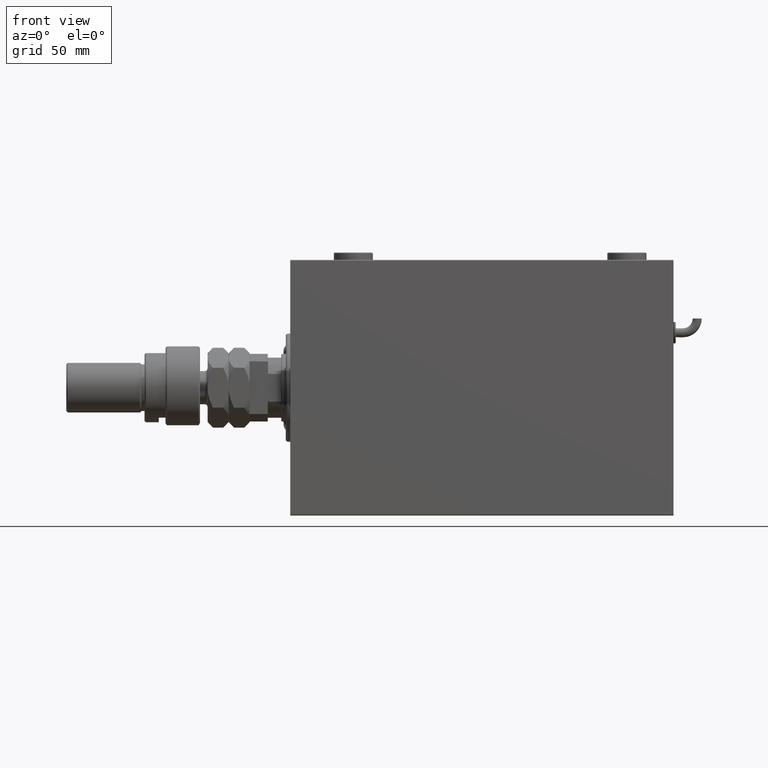
[diagram: clean part render]
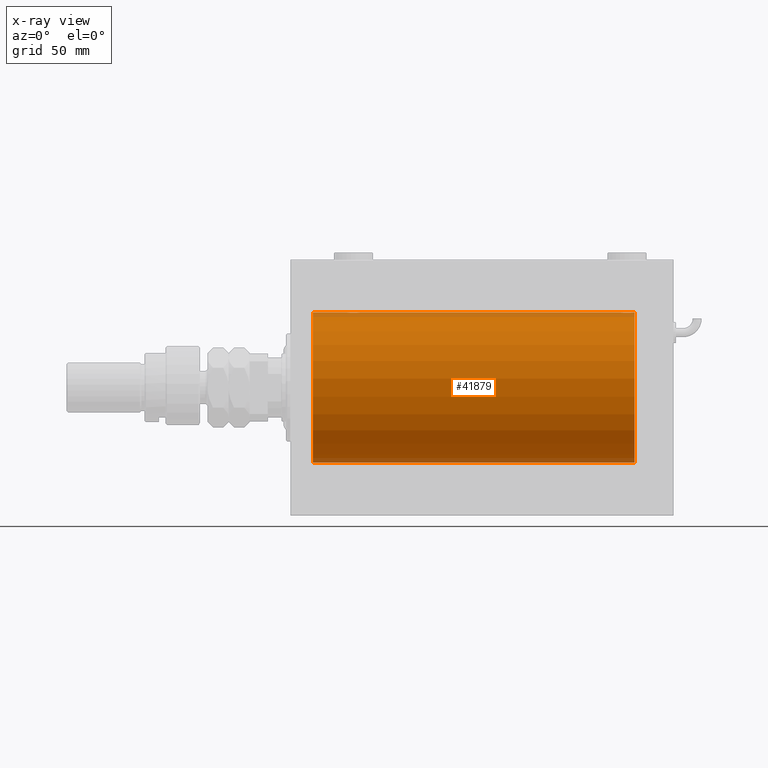
[diagram: x-ray — body ghosted, one internal face saturated and labeled with its STEP entity id]
A machine part, front view, then the same camera in x-ray: the body is ghosted and one INTERNAL B-rep face — a face not visible from any outside direction — is saturated and labeled: STEP entity #41879.
In plain terms, the highlighted cylindrical surface (partial cylindrical patch) has radius 50 mm, axis along (-1, -0, -0).
Its self-contained STEP definition (entity closure, byte-faithful):
#765 = CARTESIAN_POINT ( 'NONE',  ( 45.37519984081966840, -2.597781786597467057, 49.93300953359123184 ) ) ;
#1015 = CARTESIAN_POINT ( 'NONE',  ( 220.3106284432061841, -2.128188802142365166, 49.95522967821975158 ) ) ;
#1017 = EDGE_CURVE ( 'NONE', #43362, #8472, #20101, .T. ) ;
#1185 = VERTEX_POINT ( 'NONE', #12637 ) ;
#1473 = DIRECTION ( 'NONE',  ( -1.000000000000000000, -0.000000000000000000, -0.000000000000000000 ) ) ;
#1858 = ORIENTED_EDGE ( 'NONE', *, *, #54928, .T. ) ;
#2187 = AXIS2_PLACEMENT_3D ( 'NONE', #18991, #54447, #28736 ) ;
#2468 = CARTESIAN_POINT ( 'NONE',  ( 41.44591435119853173, -4.222816005855205113, -49.82138837911246299 ) ) ;
#2497 = CARTESIAN_POINT ( 'NONE',  ( 225.8874473939280563, -3.818052230167736205, -49.85412671291930309 ) ) ;
#2556 = VERTEX_POINT ( 'NONE', #62311 ) ;
#2667 = EDGE_CURVE ( 'NONE', #62833, #6175, #20851, .T. ) ;
#2826 = CARTESIAN_POINT ( 'NONE',  ( 221.8736835512492576, -3.690299572754756952, -49.86386974736159061 ) ) ;
#2952 = CARTESIAN_POINT ( 'NONE',  ( 228.2500000000000568, -0.2808785465865649145, 50.00000000000001421 ) ) ;
#3145 = CARTESIAN_POINT ( 'NONE',  ( 227.6893715567939580, -2.128188802142370495, -49.95522967821975158 ) ) ;
#3440 = CARTESIAN_POINT ( 'NONE',  ( 38.62480015918033871, -2.597781786597466613, -49.93300953359121763 ) ) ;
#3582 = CARTESIAN_POINT ( 'NONE',  ( 229.0000000000000000, 0.000000000000000000, 0.000000000000000000 ) ) ;
#3817 = CARTESIAN_POINT ( 'NONE',  ( 14.99999999999998579, 6.123233995736764507E-15, -50.00000000000000000 ) ) ;
#4599 = AXIS2_PLACEMENT_3D ( 'NONE', #3582, #53350, #42621 ) ;
#5338 = CARTESIAN_POINT ( 'NONE',  ( 41.44002132304352415, -4.222042462213131842, 49.82145436824653473 ) ) ;
#5434 = CARTESIAN_POINT ( 'NONE',  ( 44.81153066515419425, -3.199146701881665500, -49.89793607725460589 ) ) ;
#5577 = CARTESIAN_POINT ( 'NONE',  ( 229.0000000000000000, 6.123233995736764507E-15, -50.00000000000000000 ) ) ;
#5833 = CARTESIAN_POINT ( 'NONE',  ( 228.2500000000000284, 3.884128014896634599E-15, 50.00000000000000000 ) ) ;
#5963 = CARTESIAN_POINT ( 'NONE',  ( 37.88568086693990722, -1.101350136471746843, 49.98862054280448319 ) ) ;
#6069 = CARTESIAN_POINT ( 'NONE',  ( 45.68937155679385143, -2.128188802142360281, -49.95522967821973737 ) ) ;
#6175 = VERTEX_POINT ( 'NONE', #21702 ) ;
#6216 = CARTESIAN_POINT ( 'NONE',  ( 219.7768924720100472, -0.5531336717329080610, 49.99769193709643389 ) ) ;
#6280 = CARTESIAN_POINT ( 'NONE',  ( 37.75000000000000711, -0.2773743941468536089, 50.00000000000000000 ) ) ;
#7008 = LINE ( 'NONE', #41490, #21718 ) ;
#7345 = CARTESIAN_POINT ( 'NONE',  ( 38.18160751012128884, -1.886522330773421574, -49.96505190380066352 ) ) ;
#7379 = CARTESIAN_POINT ( 'NONE',  ( 222.6328935244542890, -4.033756670430873825, -49.83713703490974467 ) ) ;
#7547 = ORIENTED_EDGE ( 'NONE', *, *, #1017, .T. ) ;
#7661 = CARTESIAN_POINT ( 'NONE',  ( 41.72275072962081310, -4.250219976861640880, -49.81902879621016211 ) ) ;
#7694 = CARTESIAN_POINT ( 'NONE',  ( 220.6248001591803813, -2.597781786597489706, -49.93300953359122474 ) ) ;
#8338 = CARTESIAN_POINT ( 'NONE',  ( 226.1313639944615659, -3.687400765141549019, -49.86408552998298660 ) ) ;
#8470 = CARTESIAN_POINT ( 'NONE',  ( 227.3751998408197039, -2.597781786597475495, 49.93300953359122474 ) ) ;
#8472 = VERTEX_POINT ( 'NONE', #14971 ) ;
#8853 = ORIENTED_EDGE ( 'NONE', *, *, #36195, .T. ) ;
#9360 = LINE ( 'NONE', #24016, #52606 ) ;
#9886 = CARTESIAN_POINT ( 'NONE',  ( 38.31062844320614857, -2.128188802142370495, 49.95522967821975868 ) ) ;
#10369 = VERTEX_POINT ( 'NONE', #5833 ) ;
#10769 = CARTESIAN_POINT ( 'NONE',  ( 221.8686360055384910, -3.687400765141541026, 49.86408552998298660 ) ) ;
#10830 = CARTESIAN_POINT ( 'NONE',  ( 44.58820214676201488, -3.382416624899783120, 49.88570010427955737 ) ) ;
#11546 = ORIENTED_EDGE ( 'NONE', *, *, #43001, .F. ) ;
#11589 = CARTESIAN_POINT ( 'NONE',  ( 45.37881717263736192, -2.593114840406123722, -49.93325460257639037 ) ) ;
#11747 = CARTESIAN_POINT ( 'NONE',  ( 219.8856808669399356, -1.101350136471747510, 49.98862054280448319 ) ) ;
#11906 = CARTESIAN_POINT ( 'NONE',  ( 39.41179785323800644, -3.382416624899780899, -49.88570010427955737 ) ) ;
#12234 = CARTESIAN_POINT ( 'NONE',  ( 40.90262382120963736, -4.115209769591108291, -49.83039196709104601 ) ) ;
#12265 = CARTESIAN_POINT ( 'NONE',  ( 228.1143191330600359, -1.101350136471743069, -49.98862054280448319 ) ) ;
#12637 = CARTESIAN_POINT ( 'NONE',  ( 219.7500000000000284, -2.480257572105383217E-23, 50.00000000000000000 ) ) ;
#12870 = CARTESIAN_POINT ( 'NONE',  ( 42.28395287026698668, -4.249777379711400016, -49.81906655360198499 ) ) ;
#12900 = CARTESIAN_POINT ( 'NONE',  ( 225.1032329603422113, -4.113647494206503552, -49.83052139214891696 ) ) ;
#13518 = VERTEX_POINT ( 'NONE', #54966 ) ;
#13663 = CARTESIAN_POINT ( 'NONE',  ( 224.5540856488015322, -4.222816005855221100, 49.82138837911247009 ) ) ;
#14266 = EDGE_LOOP ( 'NONE', ( #30081, #35234, #8853, #1858, #19082, #37443, #35642, #11546, #7547, #20431, #31009, #33495 ) ) ;
#14564 = LINE ( 'NONE', #29848, #56321 ) ;
#14783 = CARTESIAN_POINT ( 'NONE',  ( 40.11255260607201478, -3.818052230167726879, 49.85412671291930309 ) ) ;
#14971 = CARTESIAN_POINT ( 'NONE',  ( 46.25000000000000000, 6.549608351002387256E-15, 50.00000000000000000 ) ) ;
#15102 = CARTESIAN_POINT ( 'NONE',  ( 39.86863600553845544, -3.687400765141540138, 49.86408552998298660 ) ) ;
#15736 = CARTESIAN_POINT ( 'NONE',  ( 38.62118282736264518, -2.593114840406135713, 49.93325460257641168 ) ) ;
#15994 = CIRCLE ( 'NONE', #4599, 50.00000000000000000 ) ;
#16151 = CARTESIAN_POINT ( 'NONE',  ( 43.37333436579037738, -4.031616700143179521, -49.83731072121799599 ) ) ;
#16473 = CARTESIAN_POINT ( 'NONE',  ( 46.25000000000000000, 6.123233970928580774E-15, -50.00000000000000000 ) ) ;
#16629 = CARTESIAN_POINT ( 'NONE',  ( 222.8967670396579024, -4.113647494206499111, 49.83052139214891696 ) ) ;
#17470 = CARTESIAN_POINT ( 'NONE',  ( 220.1816075101212959, -1.886522330773437339, -49.96505190380065642 ) ) ;
#17558 = CARTESIAN_POINT ( 'NONE',  ( 219.7500000000000284, -2.307503314381865081E-14, -50.00000000000000000 ) ) ;
#17596 = CARTESIAN_POINT ( 'NONE',  ( 227.6860283212195668, -2.133925816755189775, 49.95498245321557818 ) ) ;
#18802 = DIRECTION ( 'NONE',  ( -1.000000000000000000, -0.000000000000000000, -0.000000000000000000 ) ) ;
#18991 = CARTESIAN_POINT ( 'NONE',  ( 14.99999999999998579, 0.000000000000000000, 0.000000000000000000 ) ) ;
#19082 = ORIENTED_EDGE ( 'NONE', *, *, #55934, .T. ) ;
#20101 = B_SPLINE_CURVE_WITH_KNOTS ( 'NONE', 3,
 ( #25484, #6280, #60320, #5963, #50852, #44710, #9886, #15736, #59694, #25802, #26119, #15102, #14783, #34617, #54488, #5338, #20934, #50222, #34935, #29736, #54811, #30057, #55433, #10830, #45331, #55124, #765, #40448, #25174, #30678, #45023, #40141, #50535, #35250 ),
 .UNSPECIFIED., .F., .F.,
 ( 4, 2, 2, 2, 2, 2, 2, 2, 2, 2, 2, 2, 2, 2, 2, 2, 4 ),
 ( 0.01329343152928758910, 0.01412407817529637635, 0.01495472482130516534, 0.01578537146731395432, 0.01661601811332274331, 0.01744666475933152883, 0.01827731140534032128, 0.01910795805134910680, 0.01993860469735789578, 0.02076925134336668477, 0.02159989798937547029, 0.02243054463538425927, 0.02326119128139304826, 0.02409183792740183377, 0.02492248457341062276, 0.02575313121941941175, 0.02658377786542820073 ),
 .UNSPECIFIED. ) ;
#20431 = ORIENTED_EDGE ( 'NONE', *, *, #52483, .F. ) ;
#20851 = CIRCLE ( 'NONE', #2187, 50.00000000000000000 ) ;
#20871 = CARTESIAN_POINT ( 'NONE',  ( 224.2772492703792011, -4.250219976861659532, 49.81902879621013369 ) ) ;
#20934 = CARTESIAN_POINT ( 'NONE',  ( 41.71604712973302043, -4.249777379711411562, 49.81906655360197789 ) ) ;
#21187 = CARTESIAN_POINT ( 'NONE',  ( 220.6211828273626452, -2.593114840406131716, 49.93325460257641168 ) ) ;
#21702 = CARTESIAN_POINT ( 'NONE',  ( 14.99999999999998579, 0.000000000000000000, 50.00000000000000000 ) ) ;
#21718 = VECTOR ( 'NONE', #41178, 1000.000000000000000 ) ;
#22349 = CARTESIAN_POINT ( 'NONE',  ( 227.3788171726373264, -2.593114840406136157, -49.93325460257641879 ) ) ;
#22355 = VERTEX_POINT ( 'NONE', #44294 ) ;
#22684 = CARTESIAN_POINT ( 'NONE',  ( 226.8115306651542085, -3.199146701881684596, -49.89793607725460589 ) ) ;
#22891 = LINE ( 'NONE', #47941, #57792 ) ;
#22998 = CARTESIAN_POINT ( 'NONE',  ( 220.8007807203871948, -2.811461347331129179, -49.92127983148851200 ) ) ;
#23192 = EDGE_CURVE ( 'NONE', #37301, #62833, #22891, .T. ) ;
#23312 = CARTESIAN_POINT ( 'NONE',  ( 219.7500000000000284, -2.307503314381865081E-14, -50.00000000000000000 ) ) ;
#24016 = CARTESIAN_POINT ( 'NONE',  ( 229.0000000000000000, 6.123233995736764507E-15, -50.00000000000000000 ) ) ;
#25174 = CARTESIAN_POINT ( 'NONE',  ( 45.81839248987871116, -1.886522330773410250, 49.96505190380065642 ) ) ;
#25270 = CARTESIAN_POINT ( 'NONE',  ( 44.59312720885954917, -3.378657745070622997, -49.88595615988429444 ) ) ;
#25484 = CARTESIAN_POINT ( 'NONE',  ( 37.75000000000000711, -2.480809774739037926E-23, 50.00000000000000000 ) ) ;
#25802 = CARTESIAN_POINT ( 'NONE',  ( 39.18846933484581996, -3.199146701881677934, 49.89793607725461300 ) ) ;
#26119 = CARTESIAN_POINT ( 'NONE',  ( 39.40687279114045083, -3.378657745070634544, 49.88595615988430154 ) ) ;
#26379 = CARTESIAN_POINT ( 'NONE',  ( 223.7160471297330560, -4.249777379711418668, 49.81906655360197789 ) ) ;
#26544 = CARTESIAN_POINT ( 'NONE',  ( 46.22310752799000255, -0.5531336717328981800, -49.99769193709643389 ) ) ;
#26896 = CARTESIAN_POINT ( 'NONE',  ( 221.1930216816069503, -3.203153387937343499, -49.89767833571684008 ) ) ;
#27193 = CARTESIAN_POINT ( 'NONE',  ( 40.11782950515556934, -3.820681512513380618, -49.85392475515399724 ) ) ;
#27225 = CARTESIAN_POINT ( 'NONE',  ( 224.5599786769565469, -4.222042462213146941, -49.82145436824653473 ) ) ;
#27540 = CARTESIAN_POINT ( 'NONE',  ( 223.7227507296208842, -4.250219976861668414, -49.81902879621013369 ) ) ;
#28158 = CARTESIAN_POINT ( 'NONE',  ( 38.80078072038718062, -2.811461347331114524, -49.92127983148851200 ) ) ;
#28185 = CARTESIAN_POINT ( 'NONE',  ( 222.1178295051556120, -3.820681512513405931, -49.85392475515401145 ) ) ;
#28224 = VERTEX_POINT ( 'NONE', #17558 ) ;
#28231 = DIRECTION ( 'NONE',  ( 0.000000000000000000, 0.000000000000000000, 1.000000000000000000 ) ) ;
#28483 = CARTESIAN_POINT ( 'NONE',  ( 37.75000000000000711, -2.480809774739037926E-23, 50.00000000000000000 ) ) ;
#28559 = DIRECTION ( 'NONE',  ( -1.000000000000000000, -0.000000000000000000, -0.000000000000000000 ) ) ;
#28736 = DIRECTION ( 'NONE',  ( 0.000000000000000000, 0.000000000000000000, 1.000000000000000000 ) ) ;
#29736 = CARTESIAN_POINT ( 'NONE',  ( 43.09737617879037685, -4.115209769591117173, 49.83039196709103180 ) ) ;
#29848 = CARTESIAN_POINT ( 'NONE',  ( 229.0000000000000000, 0.000000000000000000, 50.00000000000000000 ) ) ;
#30057 = CARTESIAN_POINT ( 'NONE',  ( 43.88217049484444487, -3.820681512513385059, 49.85392475515401145 ) ) ;
#30081 = ORIENTED_EDGE ( 'NONE', *, *, #47870, .F. ) ;
#30308 = DIRECTION ( 'NONE',  ( -1.000000000000000000, -0.000000000000000000, -0.000000000000000000 ) ) ;
#30615 = CARTESIAN_POINT ( 'NONE',  ( 222.6266656342096724, -4.031616700143203502, 49.83731072121799599 ) ) ;
#30678 = CARTESIAN_POINT ( 'NONE',  ( 46.03079796155343217, -1.375411031076034352, 49.98173289062309976 ) ) ;
#31009 = ORIENTED_EDGE ( 'NONE', *, *, #39114, .T. ) ;
#31053 = VERTEX_POINT ( 'NONE', #56798 ) ;
#32069 = CARTESIAN_POINT ( 'NONE',  ( 39.19302168160691480, -3.203153387937326624, -49.89767833571684008 ) ) ;
#32100 = CARTESIAN_POINT ( 'NONE',  ( 222.9026238212096587, -4.115209769591131383, -49.83039196709102470 ) ) ;
#32225 = CARTESIAN_POINT ( 'NONE',  ( 228.2500000000000284, 3.884128014896634599E-15, 50.00000000000000000 ) ) ;
#32390 = CARTESIAN_POINT ( 'NONE',  ( 40.63289352445426772, -4.033756670430847180, -49.83713703490975888 ) ) ;
#32551 = EDGE_CURVE ( 'NONE', #22355, #10369, #7008, .T. ) ;
#33030 = CARTESIAN_POINT ( 'NONE',  ( 37.96920203844657493, -1.375411031076047230, -49.98173289062308555 ) ) ;
#33495 = ORIENTED_EDGE ( 'NONE', *, *, #32551, .F. ) ;
#33746 = CARTESIAN_POINT ( 'NONE',  ( 229.0000000000000000, 0.000000000000000000, 0.000000000000000000 ) ) ;
#34617 = CARTESIAN_POINT ( 'NONE',  ( 40.62666563420964394, -4.031616700143194620, 49.83731072121800310 ) ) ;
#34935 = CARTESIAN_POINT ( 'NONE',  ( 42.55408564880149669, -4.222816005855215771, 49.82138837911247009 ) ) ;
#35034 = CARTESIAN_POINT ( 'NONE',  ( 46.11431913306008568, -1.101350136471737295, -49.98862054280449030 ) ) ;
#35234 = ORIENTED_EDGE ( 'NONE', *, *, #56534, .T. ) ;
#35250 = CARTESIAN_POINT ( 'NONE',  ( 46.25000000000000000, 6.549608351002387256E-15, 50.00000000000000000 ) ) ;
#35452 = AXIS2_PLACEMENT_3D ( 'NONE', #33746, #18802, #28231 ) ;
#35505 = CARTESIAN_POINT ( 'NONE',  ( 221.1884693348458200, -3.199146701881678823, 49.89793607725462010 ) ) ;
#35642 = ORIENTED_EDGE ( 'NONE', *, *, #2667, .T. ) ;
#35987 = CARTESIAN_POINT ( 'NONE',  ( 45.82100581985226029, -1.881229021238118859, -49.96525240872481533 ) ) ;
#36141 = CARTESIAN_POINT ( 'NONE',  ( 220.7969643804801194, -2.807099414226281286, 49.92152599098507437 ) ) ;
#36195 = EDGE_CURVE ( 'NONE', #2556, #28224, #62711, .T. ) ;
#36269 = LINE ( 'NONE', #51247, #49442 ) ;
#36302 = CARTESIAN_POINT ( 'NONE',  ( 46.25000000000001421, -0.2773743941468467811, -50.00000000000002132 ) ) ;
#36785 = CARTESIAN_POINT ( 'NONE',  ( 219.9672735790269087, -1.369753890039649091, 49.98188917176553048 ) ) ;
#37301 = VERTEX_POINT ( 'NONE', #59529 ) ;
#37305 = CARTESIAN_POINT ( 'NONE',  ( 219.7775736447922270, -0.5587117664567382569, -49.99763378604802710 ) ) ;
#37433 = CARTESIAN_POINT ( 'NONE',  ( 228.2224263552078014, -0.5587117664567151643, 49.99763378604802000 ) ) ;
#37443 = ORIENTED_EDGE ( 'NONE', *, *, #23192, .T. ) ;
#39114 = EDGE_CURVE ( 'NONE', #1185, #10369, #63286, .T. ) ;
#40141 = CARTESIAN_POINT ( 'NONE',  ( 46.22242635520782272, -0.5587117664567085029, 49.99763378604804132 ) ) ;
#40448 = CARTESIAN_POINT ( 'NONE',  ( 45.68602832121950286, -2.133925816755181337, 49.95498245321556396 ) ) ;
#40497 = B_SPLINE_CURVE_WITH_KNOTS ( 'NONE', 3,
 ( #16473, #36302, #26544, #35034, #56177, #35987, #6069, #11589, #54909, #5434, #25270, #45119, #45755, #16151, #57145, #47358, #12870, #7661, #2468, #12234, #32390, #27193, #47039, #11906, #32069, #28158, #3440, #51925, #7345, #33030, #42485, #57468, #52253, #61720 ),
 .UNSPECIFIED., .F., .F.,
 ( 4, 2, 2, 2, 2, 2, 2, 2, 2, 2, 2, 2, 2, 2, 2, 2, 4 ),
 ( 0.01329343152928757002, 0.01412407817529635554, 0.01495472482130513932, 0.01578537146731392310, 0.01661601811332270862, 0.01744666475933149413, 0.01827731140534027965, 0.01910795805134906516, 0.01993860469735784721, 0.02076925134336663273, 0.02159989798937541824, 0.02243054463538420029, 0.02326119128139298581, 0.02409183792740176785, 0.02492248457341054990, 0.02575313121941933542, 0.02658377786542811747 ),
 .UNSPECIFIED. ) ;
#41178 = DIRECTION ( 'NONE',  ( -1.000000000000000000, -0.000000000000000000, -0.000000000000000000 ) ) ;
#41490 = CARTESIAN_POINT ( 'NONE',  ( 229.0000000000000000, 0.000000000000000000, 50.00000000000000000 ) ) ;
#41879 = ADVANCED_FACE ( 'NONE', ( #63415 ), #52965, .F. ) ;
#42186 = CARTESIAN_POINT ( 'NONE',  ( 227.2030356195199658, -2.807099414226289280, -49.92152599098506727 ) ) ;
#42485 = CARTESIAN_POINT ( 'NONE',  ( 37.88750298919665482, -1.108337267831493556, -49.98846998601261760 ) ) ;
#42514 = CARTESIAN_POINT ( 'NONE',  ( 228.2500000000000568, -0.2773743941468493901, -50.00000000000000711 ) ) ;
#42621 = DIRECTION ( 'NONE',  ( 0.000000000000000000, 0.000000000000000000, 1.000000000000000000 ) ) ;
#42637 = CARTESIAN_POINT ( 'NONE',  ( 228.0307979615534748, -1.375411031076043678, 49.98173289062309976 ) ) ;
#42834 = CARTESIAN_POINT ( 'NONE',  ( 219.7500000000000853, -0.2808785465865917264, -50.00000000000001421 ) ) ;
#43001 = EDGE_CURVE ( 'NONE', #43362, #6175, #14564, .T. ) ;
#43313 = VECTOR ( 'NONE', #30308, 1000.000000000000000 ) ;
#43362 = VERTEX_POINT ( 'NONE', #28483 ) ;
#44294 = CARTESIAN_POINT ( 'NONE',  ( 229.0000000000000000, 0.000000000000000000, 50.00000000000000000 ) ) ;
#44710 = CARTESIAN_POINT ( 'NONE',  ( 38.17899418014773971, -1.881229021238131294, 49.96525240872482954 ) ) ;
#45023 = CARTESIAN_POINT ( 'NONE',  ( 46.11249701080335228, -1.108337267831486228, 49.98846998601261760 ) ) ;
#45119 = CARTESIAN_POINT ( 'NONE',  ( 44.13136399446154456, -3.687400765141527259, -49.86408552998295818 ) ) ;
#45331 = CARTESIAN_POINT ( 'NONE',  ( 44.80697831839310652, -3.203153387937319962, 49.89767833571683298 ) ) ;
#45755 = CARTESIAN_POINT ( 'NONE',  ( 43.88744739392798522, -3.818052230167713113, -49.85412671291930309 ) ) ;
#46744 = CARTESIAN_POINT ( 'NONE',  ( 228.2500000000000284, 6.123233970934102801E-15, -50.00000000000000000 ) ) ;
#47039 = CARTESIAN_POINT ( 'NONE',  ( 39.87368355124921493, -3.690299572754719648, -49.86386974736159061 ) ) ;
#47071 = CARTESIAN_POINT ( 'NONE',  ( 221.4117978532380562, -3.382416624899818647, -49.88570010427955737 ) ) ;
#47198 = CARTESIAN_POINT ( 'NONE',  ( 227.1992192796128620, -2.811461347331109639, 49.92127983148852621 ) ) ;
#47358 = CARTESIAN_POINT ( 'NONE',  ( 42.55997867695647585, -4.222042462213118519, -49.82145436824654894 ) ) ;
#47387 = CARTESIAN_POINT ( 'NONE',  ( 219.8875029891967188, -1.108337267831515982, -49.98846998601261760 ) ) ;
#47870 = EDGE_CURVE ( 'NONE', #13518, #22355, #15994, .T. ) ;
#47941 = CARTESIAN_POINT ( 'NONE',  ( 229.0000000000000000, 6.123233995736764507E-15, -50.00000000000000000 ) ) ;
#48044 = CARTESIAN_POINT ( 'NONE',  ( 219.9692020384465820, -1.375411031076060331, -49.98173289062309976 ) ) ;
#48171 = CARTESIAN_POINT ( 'NONE',  ( 226.5882021467620859, -3.382416624899788893, 49.88570010427955737 ) ) ;
#49442 = VECTOR ( 'NONE', #1473, 1000.000000000000000 ) ;
#49838 = LINE ( 'NONE', #5577, #43313 ) ;
#50222 = CARTESIAN_POINT ( 'NONE',  ( 42.27724927037918690, -4.250219976861652427, 49.81902879621014080 ) ) ;
#50474 = CARTESIAN_POINT ( 'NONE',  ( 223.4400213230435668, -4.222042462213138947, 49.82145436824653473 ) ) ;
#50535 = CARTESIAN_POINT ( 'NONE',  ( 46.25000000000004974, -0.2808785465865676345, 50.00000000000002842 ) ) ;
#50793 = CARTESIAN_POINT ( 'NONE',  ( 220.1789941801477539, -1.881229021238122856, 49.96525240872482954 ) ) ;
#50852 = CARTESIAN_POINT ( 'NONE',  ( 37.96727357902688738, -1.369753890039657085, 49.98188917176553048 ) ) ;
#51117 = CARTESIAN_POINT ( 'NONE',  ( 222.1125526060720290, -3.818052230167736649, 49.85412671291929598 ) ) ;
#51247 = CARTESIAN_POINT ( 'NONE',  ( 229.0000000000000000, 0.000000000000000000, 50.00000000000000000 ) ) ;
#51441 = CARTESIAN_POINT ( 'NONE',  ( 219.7500000000000000, -0.2773743941468553853, 50.00000000000000711 ) ) ;
#51925 = CARTESIAN_POINT ( 'NONE',  ( 38.31397167878049714, -2.133925816755183114, -49.95498245321555686 ) ) ;
#51959 = CARTESIAN_POINT ( 'NONE',  ( 225.3733343657904697, -4.031616700143205279, -49.83731072121799599 ) ) ;
#52253 = CARTESIAN_POINT ( 'NONE',  ( 37.75000000000000711, -0.2808785465865692443, -50.00000000000001421 ) ) ;
#52483 = EDGE_CURVE ( 'NONE', #1185, #8472, #36269, .T. ) ;
#52606 = VECTOR ( 'NONE', #54598, 1000.000000000000000 ) ;
#52918 = CARTESIAN_POINT ( 'NONE',  ( 228.2231075279900381, -0.5531336717329033981, -49.99769193709643389 ) ) ;
#52965 = CYLINDRICAL_SURFACE ( 'NONE', #35452, 50.00000000000000000 ) ;
#53047 = CARTESIAN_POINT ( 'NONE',  ( 225.8821704948444733, -3.820681512513395717, 49.85392475515401145 ) ) ;
#53350 = DIRECTION ( 'NONE',  ( -1.000000000000000000, 0.000000000000000000, 0.000000000000000000 ) ) ;
#53367 = CARTESIAN_POINT ( 'NONE',  ( 225.3671064755457678, -4.033756670430863167, 49.83713703490974467 ) ) ;
#54447 = DIRECTION ( 'NONE',  ( -1.000000000000000000, 0.000000000000000000, 0.000000000000000000 ) ) ;
#54488 = CARTESIAN_POINT ( 'NONE',  ( 40.89676703965784554, -4.113647494206489341, 49.83052139214891696 ) ) ;
#54598 = DIRECTION ( 'NONE',  ( -1.000000000000000000, -0.000000000000000000, -0.000000000000000000 ) ) ;
#54811 = CARTESIAN_POINT ( 'NONE',  ( 43.36710647554575360, -4.033756670430853397, 49.83713703490974467 ) ) ;
#54909 = CARTESIAN_POINT ( 'NONE',  ( 45.20303561951989479, -2.807099414226270628, -49.92152599098506016 ) ) ;
#54928 = EDGE_CURVE ( 'NONE', #28224, #31053, #49838, .T. ) ;
#54966 = CARTESIAN_POINT ( 'NONE',  ( 229.0000000000000000, 6.123233995736764507E-15, -50.00000000000000000 ) ) ;
#55124 = CARTESIAN_POINT ( 'NONE',  ( 45.19921927961284069, -2.811461347331105642, 49.92127983148852621 ) ) ;
#55372 = CARTESIAN_POINT ( 'NONE',  ( 221.4068727911404721, -3.378657745070632767, 49.88595615988430154 ) ) ;
#55433 = CARTESIAN_POINT ( 'NONE',  ( 44.12631644875080639, -3.690299572754724977, 49.86386974736159772 ) ) ;
#55934 = EDGE_CURVE ( 'NONE', #31053, #37301, #40497, .T. ) ;
#56177 = CARTESIAN_POINT ( 'NONE',  ( 46.03272642097309841, -1.369753890039645761, -49.98188917176552337 ) ) ;
#56321 = VECTOR ( 'NONE', #28559, 1000.000000000000000 ) ;
#56534 = EDGE_CURVE ( 'NONE', #13518, #2556, #9360, .T. ) ;
#56798 = CARTESIAN_POINT ( 'NONE',  ( 46.25000000000000000, 6.123233970928580774E-15, -50.00000000000000000 ) ) ;
#56853 = CARTESIAN_POINT ( 'NONE',  ( 220.3139716787804332, -2.133925816755204874, -49.95498245321555686 ) ) ;
#57145 = CARTESIAN_POINT ( 'NONE',  ( 43.10323296034216156, -4.113647494206477795, -49.83052139214893117 ) ) ;
#57310 = CARTESIAN_POINT ( 'NONE',  ( 225.0973761787904550, -4.115209769591120725, 49.83039196709102470 ) ) ;
#57468 = CARTESIAN_POINT ( 'NONE',  ( 37.77757364479218438, -0.5587117664567184949, -49.99763378604801289 ) ) ;
#57501 = CARTESIAN_POINT ( 'NONE',  ( 223.4459143511985246, -4.222816005855230870, -49.82138837911247009 ) ) ;
#57714 = DIRECTION ( 'NONE',  ( -1.000000000000000000, -0.000000000000000000, -0.000000000000000000 ) ) ;
#57792 = VECTOR ( 'NONE', #57714, 1000.000000000000000 ) ;
#57822 = CARTESIAN_POINT ( 'NONE',  ( 228.0327264209731766, -1.369753890039650646, -49.98188917176553048 ) ) ;
#57958 = CARTESIAN_POINT ( 'NONE',  ( 228.1124970108033949, -1.108337267831494222, 49.98846998601261760 ) ) ;
#58137 = CARTESIAN_POINT ( 'NONE',  ( 227.8210058198523598, -1.881229021238126409, -49.96525240872482954 ) ) ;
#58269 = CARTESIAN_POINT ( 'NONE',  ( 226.1263164487508277, -3.690299572754730306, 49.86386974736159061 ) ) ;
#59529 = CARTESIAN_POINT ( 'NONE',  ( 37.75000000000000711, -6.867186738287116403E-15, -50.00000000000000000 ) ) ;
#59694 = CARTESIAN_POINT ( 'NONE',  ( 38.79696438048009099, -2.807099414226282175, 49.92152599098506727 ) ) ;
#60320 = CARTESIAN_POINT ( 'NONE',  ( 37.77689247201000455, -0.5531336717329072838, 49.99769193709643389 ) ) ;
#60899 = CARTESIAN_POINT ( 'NONE',  ( 219.7500000000000284, -2.480257572105383217E-23, 50.00000000000000000 ) ) ;
#61720 = CARTESIAN_POINT ( 'NONE',  ( 37.75000000000000711, -6.867186738287116403E-15, -50.00000000000000000 ) ) ;
#61879 = CARTESIAN_POINT ( 'NONE',  ( 227.8183924898787609, -1.886522330773421574, 49.96505190380066352 ) ) ;
#62084 = CARTESIAN_POINT ( 'NONE',  ( 224.2839528702670293, -4.249777379711429326, -49.81906655360197789 ) ) ;
#62211 = CARTESIAN_POINT ( 'NONE',  ( 226.8069783183931349, -3.203153387937327512, 49.89767833571684008 ) ) ;
#62311 = CARTESIAN_POINT ( 'NONE',  ( 228.2500000000000284, 6.123233970934102801E-15, -50.00000000000000000 ) ) ;
#62711 = B_SPLINE_CURVE_WITH_KNOTS ( 'NONE', 3,
 ( #46744, #42514, #52918, #12265, #57822, #58137, #3145, #22349, #42186, #22684, #63039, #8338, #2497, #51959, #12900, #27225, #62084, #27540, #57501, #32100, #7379, #28185, #2826, #47071, #26896, #22998, #7694, #56853, #17470, #48044, #47387, #37305, #42834, #23312 ),
 .UNSPECIFIED., .F., .F.,
 ( 4, 2, 2, 2, 2, 2, 2, 2, 2, 2, 2, 2, 2, 2, 2, 2, 4 ),
 ( 0.01329343152928757002, 0.01412407817529635727, 0.01495472482130514279, 0.01578537146731393004, 0.01661601811332271555, 0.01744666475933150107, 0.01827731140534029006, 0.01910795805134907557, 0.01993860469735786456, 0.02076925134336665008, 0.02159989798937543559, 0.02243054463538422111, 0.02326119128139301009, 0.02409183792740179561, 0.02492248457341058460, 0.02575313121941937011, 0.02658377786542815563 ),
 .UNSPECIFIED. ) ;
#62833 = VERTEX_POINT ( 'NONE', #3817 ) ;
#63039 = CARTESIAN_POINT ( 'NONE',  ( 226.5931272088596415, -3.378657745070642981, -49.88595615988430154 ) ) ;
#63286 = B_SPLINE_CURVE_WITH_KNOTS ( 'NONE', 3,
 ( #60899, #51441, #6216, #11747, #36785, #50793, #1015, #21187, #36141, #35505, #55372, #10769, #51117, #30615, #16629, #50474, #26379, #20871, #13663, #57310, #53367, #53047, #58269, #48171, #62211, #47198, #8470, #17596, #61879, #42637, #57958, #37433, #2952, #32225 ),
 .UNSPECIFIED., .F., .F.,
 ( 4, 2, 2, 2, 2, 2, 2, 2, 2, 2, 2, 2, 2, 2, 2, 2, 4 ),
 ( 0.01329343152928753879, 0.01412407817529632258, 0.01495472482130510636, 0.01578537146731389187, 0.01661601811332267392, 0.01744666475933145944, 0.01827731140534024495, 0.01910795805134903047, 0.01993860469735781252, 0.02076925134336659456, 0.02159989798937538008, 0.02243054463538416560, 0.02326119128139295111, 0.02409183792740173316, 0.02492248457341051868, 0.02575313121941930072, 0.02658377786542808624 ),
 .UNSPECIFIED. ) ;
#63415 = FACE_OUTER_BOUND ( 'NONE', #14266, .T. ) ;